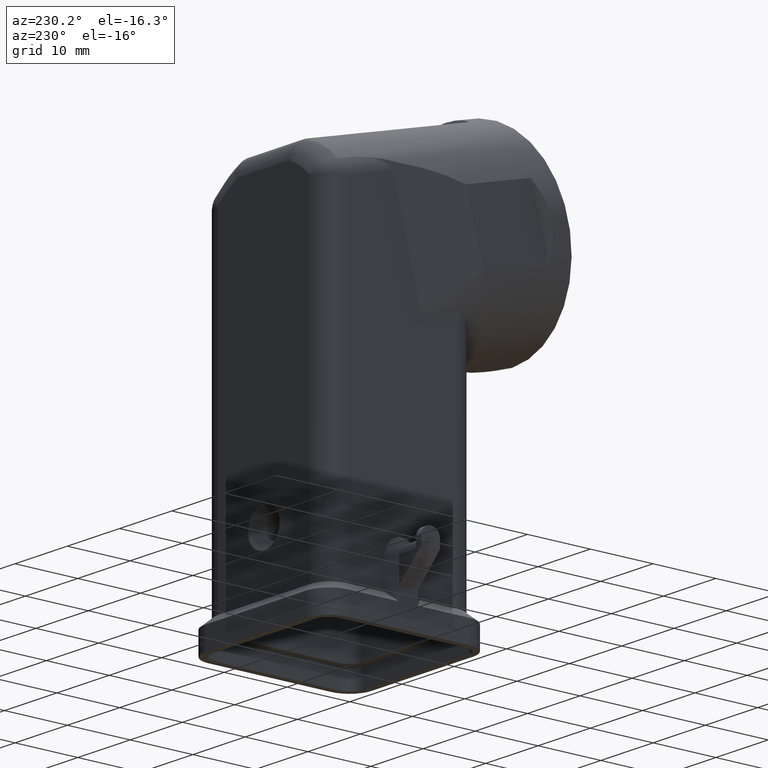
[diagram: clean part render]
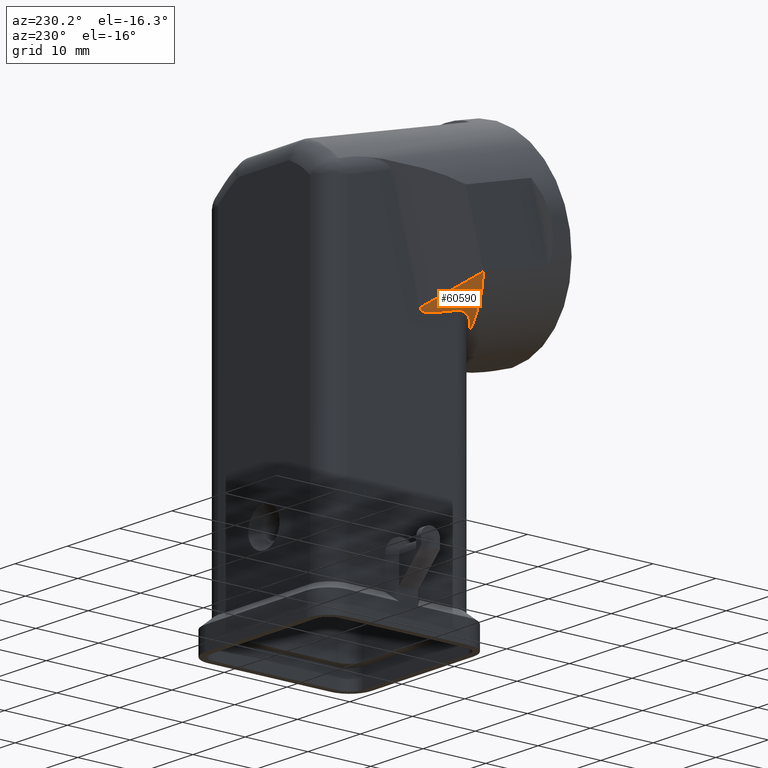
[diagram: same view with one face highlighted and labeled with its STEP entity id]
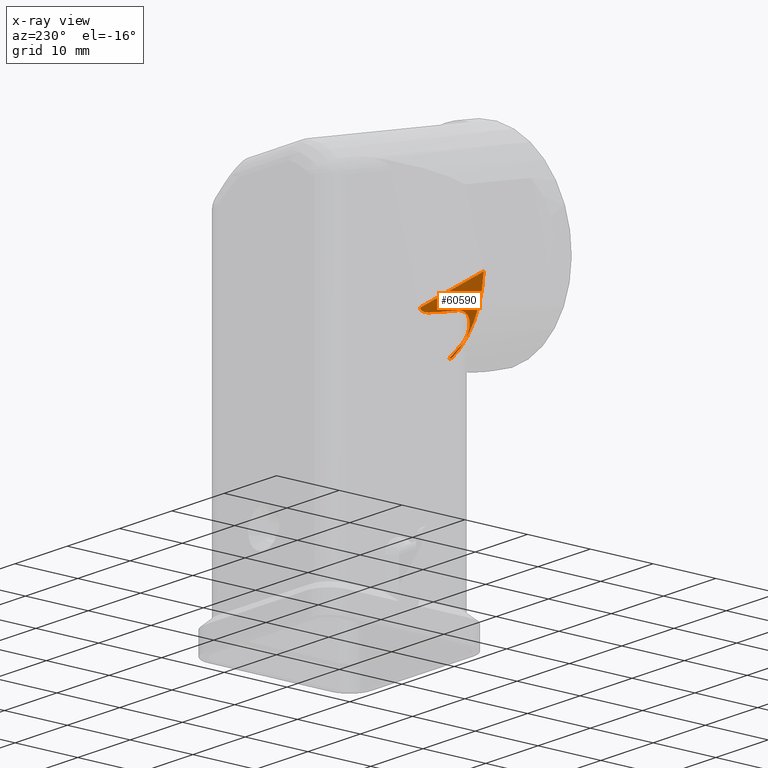
[diagram: x-ray of the same camera — body ghosted, the highlighted face saturated]
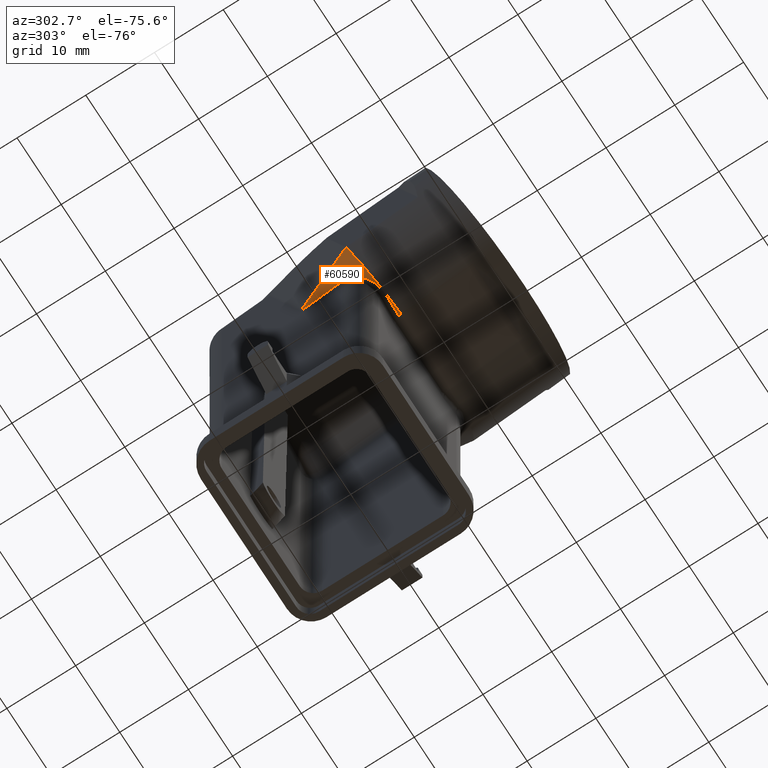
[diagram: same view with one face highlighted and labeled with its STEP entity id]
A machine part, auxiliary view. The second image highlights one B-rep face of the part: STEP entity #60590.
The next image is the same camera in x-ray: the body ghosted, the highlighted face saturated — about 0% of this face is hidden behind the body in this view.
A second angle (auxiliary view) of the same face is appended — the face is thin or edge-on in the first view.
In plain terms, the highlighted face is a freeform B-spline surface patch.
Its self-contained STEP definition (entity closure, byte-faithful):
#14660=CARTESIAN_POINT('',(7.105427357601E-15,20.3426655933017,
49.7853524136672));
#14670=DIRECTION('',(0.,-0.965925826289068,0.258819045102521));
#14680=DIRECTION('',(0.,-0.258819045102521,-0.965925826289068));
#14690=AXIS2_PLACEMENT_3D('',#14660,#14670,#14680);
#14700=CYLINDRICAL_SURFACE('',#14690,15.5);
#32070=CARTESIAN_POINT('',(-5.67339672627896,18.058251589328,
35.4642483275746));
#32080=VERTEX_POINT('',#32070);
#32110=CARTESIAN_POINT('',(-5.45998660335328,28.7704246634257,
49.5380371892867));
#32120=CARTESIAN_POINT('',(-7.10951499695104,30.0641740266937,
44.9499502436091));
#32130=CARTESIAN_POINT('',(-8.75904339054881,31.3579233899617,
40.3618632979314));
#32140=CARTESIAN_POINT('',(-10.4085717841465,32.6516727532296,
35.7737763522537));
#32150=CARTESIAN_POINT('',(-10.7528965206174,32.933348127911,
34.7826513364426));
#32160=CARTESIAN_POINT('',(-11.486214490612,32.9770223846094,
34.5085824493379));
#32170=CARTESIAN_POINT('',(-11.2327880037895,33.0575531833384,
35.2461909138547));
#32180=CARTESIAN_POINT('',(-10.6897379579591,32.798771668519,
35.5344035449767));
#32190=CARTESIAN_POINT('',(2.2915942522304,29.6442002418465,
45.5048808697784));
#32200=CARTESIAN_POINT('',(-1.68607623418347,30.109282805391,
42.2171589312712));
#32210=CARTESIAN_POINT('',(-5.66374672059735,30.5743653689355,
38.9294369927639));
#32220=CARTESIAN_POINT('',(-9.64141720701122,31.0394479324799,
35.6417150542567));
#32230=CARTESIAN_POINT('',(-10.4693150455754,31.1261425573949,
34.9927153109143));
#32240=CARTESIAN_POINT('',(-11.4681023843589,31.1858138997559,
35.0072863485111));
#32250=CARTESIAN_POINT('',(-11.4976210057393,31.3922877240778,
35.9859825951636));
#32260=CARTESIAN_POINT('',(-11.1264919719727,31.3745669076685,
36.5169896996335));
#32270=CARTESIAN_POINT('',(6.35974367383673,30.4646695067257,
39.4189970521722));
#32280=CARTESIAN_POINT('',(1.28225182279567,30.11560232369,
38.116260589828));
#32290=CARTESIAN_POINT('',(-3.79524002824539,29.7665351406542,
36.8135241274838));
#32300=CARTESIAN_POINT('',(-8.87273187928645,29.4174679576185,
35.5107876651396));
#32310=CARTESIAN_POINT('',(-10.188168466734,29.3344540723185,
35.2009756274664));
#32320=CARTESIAN_POINT('',(-11.4501933117057,29.4146845543278,
35.5003998626407));
#32330=CARTESIAN_POINT('',(-11.7601800902192,29.741320619599,
36.7194222538174));
#32340=CARTESIAN_POINT('',(-11.5632459859864,29.950362146818,
37.4995758542902));
#32350=CARTESIAN_POINT('',(8.29380750465553,23.589273827961,
32.0737426062616));
#32360=CARTESIAN_POINT('',(3.33158209046113,23.8651972289062,
33.1035027575859));
#32370=CARTESIAN_POINT('',(-1.63064332373327,24.1411206298513,
34.1332629089102));
#32380=CARTESIAN_POINT('',(-6.59286873792767,24.4170440307964,
35.1630230602346));
#32390=CARTESIAN_POINT('',(-9.44139707252448,24.5754357925898,
35.754149162748));
#32400=CARTESIAN_POINT('',(-11.4040177028501,24.8481177939743,
36.7718122462244));
#32410=CARTESIAN_POINT('',(-12.4575800528559,25.3560813914137,
38.6675582002637));
#32420=CARTESIAN_POINT('',(-12.8333333333334,25.8087529371747,
40.3569514081847));
#32430=CARTESIAN_POINT('',(8.99932011462885,19.9776178270593,
30.6111397782809));
#32440=CARTESIAN_POINT('',(4.30054726635661,20.363795758024,
32.052375437403));
#32450=CARTESIAN_POINT('',(-0.398225581915643,20.7499736889887,
33.4936110965251));
#32460=CARTESIAN_POINT('',(-5.09699843018789,21.1361516199534,
34.9348467556472));
#32470=CARTESIAN_POINT('',(-8.95142329515044,21.4529351435403,
36.1170989606741));
#32480=CARTESIAN_POINT('',(-11.3737208306494,21.8518889847954,
37.6060149661131));
#32490=CARTESIAN_POINT('',(-12.9151601057117,22.4788257198875,
39.9457747146079));
#32500=CARTESIAN_POINT('',(-13.6666666666667,23.091348488382,
42.2317408074223));
#32510=CARTESIAN_POINT('',(11.2887732426345,11.1962268547728,
29.0894722734841));
#32520=CARTESIAN_POINT('',(7.12362712740745,11.6653123581175,
30.8401232050607));
#32530=CARTESIAN_POINT('',(2.95848101218039,12.1343978614622,
32.5907741366373));
#32540=CARTESIAN_POINT('',(-1.20666510304666,12.603483364807,
34.3414250682138));
#32550=CARTESIAN_POINT('',(-7.67714082180977,13.3321988229081,
37.0610281821081));
#32560=CARTESIAN_POINT('',(-11.2949272808204,14.0595498148966,
39.7755390391448));
#32570=CARTESIAN_POINT('',(-14.105195712575,14.9959018516026,
43.270052413902));
#32580=CARTESIAN_POINT('',(-15.8339297124738,16.024152197526,
47.1075349477886));
#32590=CARTESIAN_POINT('',(12.8430265351663,7.49913021566494,
28.3898456130045));
#32600=CARTESIAN_POINT('',(8.94063476208463,7.56033781163254,
30.2391304034766));
#32610=CARTESIAN_POINT('',(5.03824298900297,7.62154540760014,
32.0884151939487));
#32620=CARTESIAN_POINT('',(1.13585121592131,7.68275300356775,
33.9376999844208));
#32630=CARTESIAN_POINT('',(-6.81020284293245,7.80738397212552,
37.7032155373873));
#32640=CARTESIAN_POINT('',(-11.2395405678973,8.58204494882888,
41.3005725891458));
#32650=CARTESIAN_POINT('',(-14.9148176648424,9.905012641256,
45.5316723059953));
#32660=CARTESIAN_POINT('',(-17.1678594249475,11.6743603554627,
50.1085396889172));
#32670=CARTESIAN_POINT('',(14.3886957448822,3.31723378344411,
27.9623015080457));
#32680=CARTESIAN_POINT('',(10.7519196748846,3.13216340307225,
29.8195259722397));
#32690=CARTESIAN_POINT('',(7.11514360488691,2.94709302270039,
31.6767504364338));
#32700=CARTESIAN_POINT('',(3.47836753488927,2.76202264232853,
33.5339749006278));
#32710=CARTESIAN_POINT('',(-5.94326486405514,2.28256912134294,
38.3454028926665));
#32720=CARTESIAN_POINT('',(-11.1841538549741,3.10454008276115,
42.8256061391467));
#32730=CARTESIAN_POINT('',(-15.7244396171098,4.81412343090945,
47.7932921980885));
#32740=CARTESIAN_POINT('',(-18.5017891374212,7.32456851339944,
53.1095444300458));
#32750=(BOUNDED_SURFACE() B_SPLINE_SURFACE(4,3,((#32110,#32190,#32270,
#32350,#32430,#32510,#32590,#32670),(#32120,#32200,#32280,#32360,#32440,
#32520,#32600,#32680),(#32130,#32210,#32290,#32370,#32450,#32530,#32610,
#32690),(#32140,#32220,#32300,#32380,#32460,#32540,#32620,#32700),(
#32150,#32230,#32310,#32390,#32470,#32550,#32630,#32710),(#32160,#32240,
#32320,#32400,#32480,#32560,#32640,#32720),(#32170,#32250,#32330,#32410,
#32490,#32570,#32650,#32730),(#32180,#32260,#32340,#32420,#32500,#32580,
#32660,#32740)),.UNSPECIFIED.,.F.,.F.,.F.) B_SPLINE_SURFACE_WITH_KNOTS((
5,3,5),(4,2,2,4),(59.0059229818574,61.8509667991878,66.3764501987817),(
-4.12445167449987,1.,10.7775321082295,26.4285808208288),.UNSPECIFIED.) 
GEOMETRIC_REPRESENTATION_ITEM() RATIONAL_B_SPLINE_SURFACE(((1.,1.,1.,1.,
1.,0.999999999999999,0.999999999999999,0.999999999999999),(1.,1.,1.,1.,
1.,0.999999999999999,0.999999999999999,0.999999999999999),(1.,1.,1.,1.,
1.,0.999999999999999,0.999999999999999,0.999999999999999),(1.,1.,1.,1.,
1.,0.999999999999999,0.999999999999999,0.999999999999999),(1.,1.,1.,1.,
1.,0.999999999999999,0.999999999999999,0.999999999999999),(
0.942809041582063,0.942809041582063,0.942809041582063,0.942809041582063,
0.99476159843922,0.99476159843922,0.99476159843922,0.99476159843922),(1.
,1.,1.,1.,1.,0.999999999999999,0.999999999999999,0.999999999999999),(1.,
1.,1.,1.,1.,0.999999999999999,0.999999999999999,0.999999999999999))) 
REPRESENTATION_ITEM('') SURFACE());
#32760=CARTESIAN_POINT('',(-9.29394125172286,18.5810226822534,
37.415256607107));
#32770=CARTESIAN_POINT('',(-9.1557614340163,18.5542272946411,
37.3152548591297));
#32780=CARTESIAN_POINT('',(-9.01572032288238,18.5280040336249,
37.2173883166403));
#32790=CARTESIAN_POINT('',(-8.87387288084377,18.5023687108727,
37.1217159896708));
#32800=CARTESIAN_POINT('',(-8.73202953816159,18.476734128975,
37.0260464276083));
#32810=CARTESIAN_POINT('',(-8.5883970722391,18.4516907644516,
36.9325833188173));
#32820=CARTESIAN_POINT('',(-8.44308681583731,18.4272622927661,
36.8414150213379));
#32830=CARTESIAN_POINT('',(-8.29777664754411,18.4028338358927,
36.7502467791383));
#32840=CARTESIAN_POINT('',(-8.15078908213352,18.3790203457624,
36.6613736240694));
#32850=CARTESIAN_POINT('',(-8.00224317872664,18.3558438206716,
36.5748776548885));
#32860=CARTESIAN_POINT('',(-7.85369732522482,18.3326673033671,
36.4883817147665));
#32870=CARTESIAN_POINT('',(-7.70359354916461,18.3101278201385,
36.4042632181816));
#32880=CARTESIAN_POINT('',(-7.55205742271274,18.2882453931046,
36.3225968886985));
#32890=CARTESIAN_POINT('',(-7.40052130707226,18.2663629676319,
36.240930565042));
#32900=CARTESIAN_POINT('',(-7.24755327359197,18.245137661695,
36.1617166448788));
#32910=CARTESIAN_POINT('',(-7.09328407678596,18.2245872780203,
36.0850215688901));
#32920=CARTESIAN_POINT('',(-6.93901485035626,18.2040368903994,
36.0083264781739));
#32930=CARTESIAN_POINT('',(-6.78344490522023,18.1841614819464,
35.9341504440064));
#32940=CARTESIAN_POINT('',(-6.62670873147855,18.164976447869,
35.8625509220847));
#32950=CARTESIAN_POINT('',(-6.46997248584714,18.145791404992,
35.7909513673227));
#32960=CARTESIAN_POINT('',(-6.31207046302168,18.1272967864971,
35.7219285106062));
#32970=CARTESIAN_POINT('',(-6.15313932516979,18.1095054467715,
35.6555303268428));
#32980=CARTESIAN_POINT('',(-5.99420807070694,18.0917140939921,
35.5891320943616));
#32990=CARTESIAN_POINT('',(-5.83424815393514,18.0746260620971,
35.5253586918956));
#33000=CARTESIAN_POINT('',(-5.67339672627873,18.0582515893281,
35.4642483275745));
#33010=B_SPLINE_CURVE_WITH_KNOTS('',3,(#32760,#32770,#32780,#32790,
#32800,#32810,#32820,#32830,#32840,#32850,#32860,#32870,#32880,#32890,
#32900,#32910,#32920,#32930,#32940,#32950,#32960,#32970,#32980,#32990,
#33000),.UNSPECIFIED.,.F.,.F.,(4,3,3,3,3,3,3,3,4),(0.,0.518493052032453,
1.03792686938708,1.55803383849138,2.0785218814299,2.59909161032297,
3.11944208955318,3.63927655293399,4.15830824190672),.UNSPECIFIED.);
#33020=SURFACE_CURVE('',#33010,(#32750,#14700),.CURVE_3D.);
#33030=CARTESIAN_POINT('',(-9.29394125172286,18.5810226822534,
37.415256607107));
#33040=VERTEX_POINT('',#33030);
#33050=EDGE_CURVE('',#33040,#32080,#33020,.T.);
#33070=CARTESIAN_POINT('',(-12.4045417492758,19.3861053327255,
40.419865962961));
#33080=CARTESIAN_POINT('',(-12.2943513776357,19.3480407844195,
40.277807134716));
#33090=CARTESIAN_POINT('',(-12.1815137284846,19.3104723549545,
40.1375998472473));
#33100=CARTESIAN_POINT('',(-12.0660627564347,19.2734148771726,
39.9992994573521));
#33110=CARTESIAN_POINT('',(-11.9506172980159,19.2363591691572,
39.8610056723153));
#33120=CARTESIAN_POINT('',(-11.8325817549931,19.1998222733965,
39.7246481209812));
#33130=CARTESIAN_POINT('',(-11.712065116879,19.1638394933531,
39.5903585576588));
#33140=CARTESIAN_POINT('',(-11.591548483686,19.1278567147791,
39.45606899982));
#33150=CARTESIAN_POINT('',(-11.4685511870742,19.0924281815671,
39.3238479138348));
#33160=CARTESIAN_POINT('',(-11.3431917853988,19.0575871227084,
39.1938193119833));
#33170=CARTESIAN_POINT('',(-11.2178323462329,19.0227460534299,
39.063790671245));
#33180=CARTESIAN_POINT('',(-11.0901112611349,18.9884925807608,
38.935954970905));
#33190=CARTESIAN_POINT('',(-10.9601551083915,18.9548574534026,
38.8104269666849));
#33200=CARTESIAN_POINT('',(-10.8301989556481,18.9212223260445,
38.6848989624649));
#33210=CARTESIAN_POINT('',(-10.6978537000802,18.8881656767592,
38.5615298678073));
#33220=CARTESIAN_POINT('',(-10.5632381455529,18.8557202664196,
38.4404419479479));
#33230=CARTESIAN_POINT('',(-10.4286226312841,18.8232748657832,
38.3193540643015));
#33240=CARTESIAN_POINT('',(-10.2917372904156,18.7914408229235,
38.2005477989404));
#33250=CARTESIAN_POINT('',(-10.1527105099075,18.7602488230009,
38.0841376704421));
#33260=CARTESIAN_POINT('',(-10.0136837237224,18.7290568218047,
37.9677275371903));
#33270=CARTESIAN_POINT('',(-9.87251599880745,18.6985069752708,
37.8537139577647));
#33280=CARTESIAN_POINT('',(-9.72934373726101,18.6686274919591,
37.7422022079508));
#33290=CARTESIAN_POINT('',(-9.58616463786194,18.6387465816146,
37.6306851323783));
#33300=CARTESIAN_POINT('',(-9.44101137282186,18.6095420490208,
37.5216923328826));
#33310=CARTESIAN_POINT('',(-9.29394125172286,18.5810226822534,
37.415256607107));
#33320=B_SPLINE_CURVE_WITH_KNOTS('',3,(#33070,#33080,#33090,#33100,
#33110,#33120,#33130,#33140,#33150,#33160,#33170,#33180,#33190,#33200,
#33210,#33220,#33230,#33240,#33250,#33260,#33270,#33280,#33290,#33300,
#33310),.UNSPECIFIED.,.F.,.F.,(4,3,3,3,3,3,3,3,4),(0.,0.551521027850455,
1.10341407076455,1.65534944923285,2.2069763948529,2.75860334047305,
3.31053871894143,3.86243176185563,4.41395278970617),.UNSPECIFIED.);
#33330=SURFACE_CURVE('',#33320,(#14700,#32750),.CURVE_3D.);
#33340=CARTESIAN_POINT('',(-12.4045417492758,19.3861053327255,
40.419865962961));
#33350=VERTEX_POINT('',#33340);
#33360=EDGE_CURVE('',#33350,#33040,#33330,.T.);
#33380=CARTESIAN_POINT('',(-4.6243853073401E-14,20.3426655933017,
49.7853524136672));
#33390=DIRECTION('',(-1.16313691722883E-16,-0.965925826289068,
0.258819045102521));
#33400=DIRECTION('',(-3.11661597658293E-17,-0.258819045102521,
-0.965925826289068));
#33410=AXIS2_PLACEMENT_3D('',#33380,#33390,#33400);
#33420=CYLINDRICAL_SURFACE('',#33410,15.5);
#33430=CARTESIAN_POINT('',(-12.4045417492759,19.3861053327255,
40.4198659629611));
#33440=CARTESIAN_POINT('',(-12.513319868558,19.4236820276255,
40.5601040975086));
#33450=CARTESIAN_POINT('',(-12.6196599668083,19.4617914006598,
40.7023302138924));
#33460=CARTESIAN_POINT('',(-12.7234856359901,19.5004149149256,
40.8464751315057));
#33470=CARTESIAN_POINT('',(-12.8273084354538,19.5390373616461,
40.9906160649859));
#33480=CARTESIAN_POINT('',(-12.9286040704586,19.5781694706974,
41.1366590841758));
#33490=CARTESIAN_POINT('',(-13.0272669794746,19.617777639383,
41.2844787821066));
#33500=CARTESIAN_POINT('',(-13.1259298224112,19.6573857815412,
41.4322983810355));
#33510=CARTESIAN_POINT('',(-13.2219595761005,19.6974698522051,
41.5818941693287));
#33520=CARTESIAN_POINT('',(-13.3152587296814,19.7379938493396,
41.7331317855608));
#33530=CARTESIAN_POINT('',(-13.4085578513516,19.7785178326138,
41.8843693500658));
#33540=CARTESIAN_POINT('',(-13.4991260355261,19.8194816037635,
42.0372482252665));
#33550=CARTESIAN_POINT('',(-13.5868752656726,19.8608471683551,
42.1916266140061));
#33560=CARTESIAN_POINT('',(-13.674624493993,19.9022127320857,
42.3460049995328));
#33570=CARTESIAN_POINT('',(-13.7595544612085,19.9439799450143,
42.5018823602734));
#33580=CARTESIAN_POINT('',(-13.841587799564,19.9861092680023,
42.659111134153));
#33590=CARTESIAN_POINT('',(-13.9236211625299,20.0282386036291,
42.8163399552018));
#33600=CARTESIAN_POINT('',(-14.0027576238226,20.0707299012794,
42.9749196369121));
#33610=CARTESIAN_POINT('',(-14.0789313327678,20.1135425652291,
43.1346986739797));
#33620=CARTESIAN_POINT('',(-14.155105089436,20.156355256001,
43.2944778111493));
#33630=CARTESIAN_POINT('',(-14.2283158587405,20.1994891632345,
43.4554557442076));
#33640=CARTESIAN_POINT('',(-14.2985098873174,20.2429031634953,
43.6174789989494));
#33650=CARTESIAN_POINT('',(-14.3687039835979,20.2863172056299,
43.7795024099662));
#33660=CARTESIAN_POINT('',(-14.4358811451368,20.3300111910808,
43.942570583904));
#33670=CARTESIAN_POINT('',(-14.5,20.3739440395895,44.1065302066599));
#33680=B_SPLINE_CURVE_WITH_KNOTS('',3,(#33430,#33440,#33450,#33460,
#33470,#33480,#33490,#33500,#33510,#33520,#33530,#33540,#33550,#33560,
#33570,#33580,#33590,#33600,#33610,#33620,#33630,#33640,#33650,#33660,
#33670),.UNSPECIFIED.,.F.,.F.,(4,3,3,3,3,3,3,3,4),(0.,0.544809896765574,
1.09064421194659,1.63718940813813,2.18410532583475,2.73104397227239,
3.2776568792016,3.82360244538535,4.36855349789572),.UNSPECIFIED.);
#33690=SURFACE_CURVE('',#33680,(#33420,#32750),.CURVE_3D.);
#33700=CARTESIAN_POINT('',(-14.4999999999999,20.3739440395897,
44.1065302066597));
#33710=VERTEX_POINT('',#33700);
#33720=EDGE_CURVE('',#33350,#33710,#33690,.T.);
#45210=CARTESIAN_POINT('',(-12.034074173711,28.4150454124902,
38.5588202885402));
#45220=VERTEX_POINT('',#45210);
#48250=CARTESIAN_POINT('',(-5.53479981809385,18.4033538625844,
35.3660110164831));
#48260=VERTEX_POINT('',#48250);
#48310=CARTESIAN_POINT('',(-5.96315159356535,17.1388652238213,
35.728694647815));
#48320=CARTESIAN_POINT('',(-5.95350688048335,17.1758070017941,
35.7180990944344));
#48330=CARTESIAN_POINT('',(-5.94367050800504,17.2127166896256,
35.7075085555293));
#48340=CARTESIAN_POINT('',(-5.91629966818547,17.3132593728786,
35.6786487050726));
#48350=CARTESIAN_POINT('',(-5.89836744814509,17.3768142595227,
35.660393794135));
#48360=CARTESIAN_POINT('',(-5.86114590595657,17.503787952559,
35.6239010141771));
#48370=CARTESIAN_POINT('',(-5.84185870364509,17.5671921382029,
35.605667306008));
#48380=CARTESIAN_POINT('',(-5.80178340334391,17.6938201122394,
35.569232464597));
#48390=CARTESIAN_POINT('',(-5.78099802977655,17.7570270743336,
35.5510361324642));
#48400=CARTESIAN_POINT('',(-5.73776047552073,17.8832134246161,
35.5146933652968));
#48410=CARTESIAN_POINT('',(-5.71531149163035,17.9461735282149,
35.4965524445651));
#48420=CARTESIAN_POINT('',(-5.66855695818637,18.071807289236,
35.4603423882416));
#48430=CARTESIAN_POINT('',(-5.64424642365583,18.1344786137797,
35.4422735239315));
#48440=CARTESIAN_POINT('',(-5.60627912942283,18.2280797606468,
35.4152836188749));
#48450=CARTESIAN_POINT('',(-5.59329195553772,18.2594029313093,
35.4062509790781));
#48460=CARTESIAN_POINT('',(-5.57364193394863,18.305736328638,
35.392889691492));
#48470=CARTESIAN_POINT('',(-5.56736580735175,18.3211637799931,
35.3885707056257));
#48480=CARTESIAN_POINT('',(-5.55522617990159,18.3519735987787,
35.3801097259214));
#48490=CARTESIAN_POINT('',(-5.54919393880511,18.367211023372,
35.3759270855793));
#48500=CARTESIAN_POINT('',(-5.51880096529361,18.4436212723252,
35.3549611399781));
#48510=CARTESIAN_POINT('',(-5.49408492510583,18.5046010749534,
35.3382561477868));
#48520=CARTESIAN_POINT('',(-5.44379694898897,18.6262791973679,
35.3049635614263));
#48530=CARTESIAN_POINT('',(-5.41823056209889,18.6869639551899,
35.2883797733632));
#48540=CARTESIAN_POINT('',(-5.36684093324417,18.806536122849,
35.2557352829886));
#48550=CARTESIAN_POINT('',(-5.341044790875,18.8654187066507,
35.2396751627827));
#48560=CARTESIAN_POINT('',(-5.28853983943638,18.9829003016447,
35.2076587926783));
#48570=CARTESIAN_POINT('',(-5.26184085705584,19.0414765315705,
35.191708785455));
#48580=CARTESIAN_POINT('',(-5.18022873449207,19.2168878673119,
35.1439819715604));
#48590=CARTESIAN_POINT('',(-5.12394244277471,19.3330967721178,
35.1124119102735));
#48600=CARTESIAN_POINT('',(-5.00701002114377,19.5640980799028,
35.0497552637067));
#48610=CARTESIAN_POINT('',(-4.94639518379895,19.6788092328325,
35.0186910977752));
#48620=CARTESIAN_POINT('',(-4.82029170406383,19.9064498529575,
34.9571644138095));
#48630=CARTESIAN_POINT('',(-4.75481938890613,20.0193241000424,
34.9267171954705));
#48640=CARTESIAN_POINT('',(-4.68492892776298,20.1338984861854,
34.8958901678297));
#48650=CARTESIAN_POINT('',(-4.68312320476533,20.1368547906676,
34.895094808317));
#48660=CARTESIAN_POINT('',(-4.6813156573676,20.1398101810756,
34.8942997496951));
#48670=B_SPLINE_CURVE_WITH_KNOTS('',3,(#48310,#48320,#48330,#48340,
#48350,#48360,#48370,#48380,#48390,#48400,#48410,#48420,#48430,#48440,
#48450,#48460,#48470,#48480,#48490,#48500,#48510,#48520,#48530,#48540,
#48550,#48560,#48570,#48580,#48590,#48600,#48610,#48620,#48630,#48640,
#48650,#48660),.UNSPECIFIED.,.F.,.F.,(4,2,2,2,2,2,2,2,2,2,2,2,2,2,2,2,2,
4),(13.8796530119001,13.9965694569296,14.1984224630151,14.4006024880517,
14.6031343462919,14.8060761866003,15.0095047803932,15.1114144953913,
15.1619939232196,15.2122225911669,15.413157408121,15.6141242682402,
15.8101430034087,16.0062680645967,16.3989455991725,16.7922373676457,
17.1863627294074,17.1968047879942),.UNSPECIFIED.);
#48680=EDGE_CURVE('',#32080,#48260,#48670,.T.);
#51370=CARTESIAN_POINT('',(-10.6897379579591,32.798771668519,
35.5344035449767));
#51380=CARTESIAN_POINT('',(-11.1264919719727,31.3745669076685,
36.5169896996335));
#51390=CARTESIAN_POINT('',(-11.5632459859864,29.950362146818,
37.4995758542902));
#51400=CARTESIAN_POINT('',(-12.8333333333334,25.8087529371747,
40.3569514081847));
#51410=CARTESIAN_POINT('',(-13.6666666666667,23.091348488382,
42.2317408074223));
#51420=CARTESIAN_POINT('',(-15.8339297124738,16.024152197526,
47.1075349477886));
#51430=CARTESIAN_POINT('',(-17.1678594249475,11.6743603554627,
50.1085396889172));
#51440=CARTESIAN_POINT('',(-18.5017891374212,7.32456851339944,
53.1095444300458));
#51450=(BOUNDED_CURVE() B_SPLINE_CURVE(3,(#51370,#51380,#51390,#51400,
#51410,#51420,#51430,#51440),.UNSPECIFIED.,.F.,.F.) 
B_SPLINE_CURVE_WITH_KNOTS((4,2,2,4),(-4.12445167449987,1.,
10.7775321082295,26.4285808208288),.UNSPECIFIED.) CURVE() 
GEOMETRIC_REPRESENTATION_ITEM() RATIONAL_B_SPLINE_CURVE((1.,1.,1.,1.,1.,
1.,1.,1.)) REPRESENTATION_ITEM(''));
#51460=EDGE_CURVE('',#45220,#33710,#51450,.T.);
#58300=ORIENTED_EDGE('',*,*,#51460,.F.);
#58310=ORIENTED_EDGE('',*,*,#33720,.T.);
#58320=ORIENTED_EDGE('',*,*,#33360,.F.);
#58330=ORIENTED_EDGE('',*,*,#33050,.F.);
#58340=ORIENTED_EDGE('',*,*,#48680,.F.);
#58350=CARTESIAN_POINT('',(-8.26832139758349,18.4812221818401,
36.7136566773033));
#58360=CARTESIAN_POINT('',(-8.23394058103185,18.4806438808789,
36.6916114594538));
#58370=CARTESIAN_POINT('',(-8.19945994887599,18.4800459723131,
36.669719124541));
#58380=CARTESIAN_POINT('',(-8.12911740737704,18.478789097758,
36.6254982099418));
#58390=CARTESIAN_POINT('',(-8.09324694306307,18.4781288703857,
36.6031794574018));
#58400=CARTESIAN_POINT('',(-8.05464637311731,18.4773976912298,
36.5794100196449));
#58410=CARTESIAN_POINT('',(-8.05201765737885,18.4773477949148,
36.57779254068));
#58420=CARTESIAN_POINT('',(-8.03871111701923,18.4770947004852,
36.5696110988168));
#58430=CARTESIAN_POINT('',(-8.02802504965642,18.476889755318,
36.5630611190388));
#58440=CARTESIAN_POINT('',(-7.96420604178424,18.4756556931181,
36.5240644952012));
#58450=CARTESIAN_POINT('',(-7.85752549229492,18.4735094078361,
36.4598768576971));
#58460=CARTESIAN_POINT('',(-7.74998885223503,18.4711796580884,
36.3971688750672));
#58470=CARTESIAN_POINT('',(-7.63527204712053,18.4686066785212,
36.331327345418));
#58480=CARTESIAN_POINT('',(-7.57427346940742,18.4671865178604,
36.2969423862449));
#58490=CARTESIAN_POINT('',(-7.45175902867134,18.4642309046568,
36.2291264233861));
#58500=CARTESIAN_POINT('',(-7.39024316564838,18.4626954521139,
36.1956954197005));
#58510=CARTESIAN_POINT('',(-7.25034608279766,18.4590880390905,
36.1210674766009));
#58520=CARTESIAN_POINT('',(-7.17182215050062,18.4569819303473,
36.0801634353695));
#58530=CARTESIAN_POINT('',(-7.07389956098288,18.4542561825531,
36.0303685405366));
#58540=CARTESIAN_POINT('',(-7.03682290884801,18.4532151201929,
36.0116246313191));
#58550=CARTESIAN_POINT('',(-6.99966101868837,18.4521541853943,
35.9930517415239));
#58560=CARTESIAN_POINT('',(-6.96215313693039,18.4510748312357,
35.974410742659));
#58570=CARTESIAN_POINT('',(-6.92224570761472,18.4499167071097,
35.9546964104059));
#58580=CARTESIAN_POINT('',(-6.88224238263725,18.4487359510832,
35.9351791523157));
#58590=CARTESIAN_POINT('',(-6.85615097175181,18.4479592334342,
35.9225308641884));
#58600=CARTESIAN_POINT('',(-6.85061576552895,18.4477940791405,
35.9198522183686));
#58610=CARTESIAN_POINT('',(-6.81899117350465,18.4468483480876,
35.9045746933407));
#58620=CARTESIAN_POINT('',(-6.7928632490597,18.446058656149,
35.892055616678));
#58630=CARTESIAN_POINT('',(-6.63934748676157,18.4413701542158,
35.8191025769659));
#58640=CARTESIAN_POINT('',(-6.51107751431946,18.4372566500223,
35.7605786579291));
#58650=CARTESIAN_POINT('',(-6.31733776726698,18.4307607025558,
35.6757847554643));
#58660=CARTESIAN_POINT('',(-6.25253994073258,18.42854125214,
35.6480208455582));
#58670=CARTESIAN_POINT('',(-6.12252339936744,18.4239965708351,
35.5934959192979));
#58680=CARTESIAN_POINT('',(-6.0573046845367,18.421671339946,
35.5667349029436));
#58690=CARTESIAN_POINT('',(-5.96222596894844,18.4182169863124,
35.5285722260844));
#58700=CARTESIAN_POINT('',(-5.90289317099711,18.4160434813017,
35.5049964488058));
#58710=CARTESIAN_POINT('',(-5.84343256344761,18.413829520582,
35.4818467320466));
#58720=CARTESIAN_POINT('',(-5.80986101434829,18.41256944648,
35.4689098898244));
#58730=CARTESIAN_POINT('',(-5.80607072039994,18.4124270372778,
35.467451209258));
#58740=CARTESIAN_POINT('',(-5.77145957169374,18.4111253070408,
35.4541486991497));
#58750=CARTESIAN_POINT('',(-5.74058148357082,18.4099544417434,
35.4424073374825));
#58760=CARTESIAN_POINT('',(-5.69214567444211,18.4081032267461,
35.4241881216917));
#58770=CARTESIAN_POINT('',(-5.67464284137118,18.4074313070258,
35.4176447194407));
#58780=CARTESIAN_POINT('',(-5.64704924985162,18.406367415746,
35.4073924281402));
#58790=CARTESIAN_POINT('',(-5.63692451055649,18.4060122555198,
35.4036392351589));
#58800=CARTESIAN_POINT('',(-5.62167531646604,18.4055215939646,
35.3980009237316));
#58810=CARTESIAN_POINT('',(-5.61658189872114,18.4053650553122,
35.3961200785852));
#58820=CARTESIAN_POINT('',(-5.6063799425803,18.4050648301108,
35.3923578989203));
#58830=CARTESIAN_POINT('',(-5.60127116674975,18.4049212253227,
35.3904772017319));
#58840=CARTESIAN_POINT('',(-5.57570850800727,18.4042306440324,
35.3810647309476));
#58850=CARTESIAN_POINT('',(-5.55519551968269,18.4037669562888,
35.3735133342789));
#58860=CARTESIAN_POINT('',(-5.53479981431261,18.403353863874,
35.3660110266917));
#58870=(BOUNDED_CURVE() B_SPLINE_CURVE(3,(#58350,#58360,#58370,#58380,
#58390,#58400,#58410,#58420,#58430,#58440,#58450,#58460,#58470,#58480,
#58490,#58500,#58510,#58520,#58530,#58540,#58550,#58560,#58570,#58580,
#58590,#58600,#58610,#58620,#58630,#58640,#58650,#58660,#58670,#58680,
#58690,#58700,#58710,#58720,#58730,#58740,#58750,#58760,#58770,#58780,
#58790,#58800,#58810,#58820,#58830,#58840,#58850,#58860),.UNSPECIFIED.,
.F.,.F.) B_SPLINE_CURVE_WITH_KNOTS((4,2,2,2,2,1,2,2,2,2,1,2,1,2,2,2,2,2,
2,1,2,2,2,2,2,2,2,4),(0.,0.126786024948464,0.257948543547989,
0.267531426077825,0.306447210016421,0.499752771586692,0.693058333156963,
0.910558333393264,1.12805833362956,1.40314490341995,1.46940616801894,
1.53223733685636,1.5995528443494,1.67054325780412,1.68965099390647,
1.77967667155758,2.2177907514018,2.43686172924258,2.65593270708337,
2.75522883916672,2.85452497125007,2.86715935070081,2.96986931276351,
3.02785240142859,3.06112596951818,3.07776275356297,3.09439953760777,
3.16094667378695),.UNSPECIFIED.) CURVE() GEOMETRIC_REPRESENTATION_ITEM()
 RATIONAL_B_SPLINE_CURVE((1.,1.,1.,1.,1.,1.,1.,1.,1.,1.,1.,1.,1.,1.,1.,
1.,1.,1.,1.,1.,1.,1.,1.,1.,1.,1.,1.,1.,1.,1.,1.,1.,1.,1.,1.,1.,1.,1.,1.,
1.,1.,1.,1.,1.,1.,1.,1.,1.,1.,1.,1.,1.)) REPRESENTATION_ITEM(''));
#58880=CARTESIAN_POINT('',(-8.26832139758349,18.4812221818401,
36.7136566773033));
#58890=VERTEX_POINT('',#58880);
#58900=EDGE_CURVE('',#58890,#48260,#58870,.T.);
#58910=ORIENTED_EDGE('',*,*,#58900,.T.);
#58920=CARTESIAN_POINT('',(-8.26832139758349,18.4812221818401,
36.7136566773033));
#58930=CARTESIAN_POINT('',(-8.31681431168112,18.4820379579113,
36.7447506454048));
#58940=CARTESIAN_POINT('',(-8.36520332919495,18.4837706334213,
36.7759828126482));
#58950=CARTESIAN_POINT('',(-8.49442220540831,18.4908262502948,
36.8599143014733));
#58960=CARTESIAN_POINT('',(-8.57499935752157,18.49778573129,
36.9128084376333));
#58970=CARTESIAN_POINT('',(-8.74580419443181,18.517909100162,
37.0260439753098));
#58980=CARTESIAN_POINT('',(-8.83584917935996,18.5317578628497,
37.0864105744516));
#58990=CARTESIAN_POINT('',(-9.01478315436895,18.5657066468839,
37.2076100999274));
#59000=CARTESIAN_POINT('',(-9.10360554847461,18.5858041739266,
37.2683999372505));
#59010=CARTESIAN_POINT('',(-9.27982299917405,18.6321726214669,
37.3901523643007));
#59020=CARTESIAN_POINT('',(-9.36715589594503,18.6584339088934,
37.451073289396));
#59030=CARTESIAN_POINT('',(-9.52795210895805,18.712946205324,
37.5642187374054));
#59040=CARTESIAN_POINT('',(-9.60160718290257,18.7403900134034,
37.6164395815482));
#59050=CARTESIAN_POINT('',(-9.74749284313009,18.7997738471336,
37.7205837485401));
#59060=CARTESIAN_POINT('',(-9.81968316061163,18.831697312659,
37.7724783818221));
#59070=CARTESIAN_POINT('',(-9.96246830803737,18.90003248373,
37.8757609070482));
#59080=CARTESIAN_POINT('',(-10.0330202970074,18.9364212122691,
37.9271176099542));
#59090=CARTESIAN_POINT('',(-10.1723549991729,19.013694480939,
38.0291026337938));
#59100=CARTESIAN_POINT('',(-10.2410935482451,19.0545499773548,
38.0796982898966));
#59110=CARTESIAN_POINT('',(-10.3765423741125,19.1407314521628,
38.1798638957248));
#59120=CARTESIAN_POINT('',(-10.4432089646955,19.1860164485428,
38.2294006158702));
#59130=CARTESIAN_POINT('',(-10.5743852689212,19.2811239261965,
38.3272307701167));
#59140=CARTESIAN_POINT('',(-10.6388472532335,19.3309014778844,
38.375488192737));
#59150=CARTESIAN_POINT('',(-10.7653803430652,19.4350266660625,
38.4704449051135));
#59160=CARTESIAN_POINT('',(-10.8274019089987,19.4893183235095,
38.5171067174237));
#59170=CARTESIAN_POINT('',(-10.9488213599429,19.6025305504542,
38.6085331418399));
#59180=CARTESIAN_POINT('',(-11.0081766537752,19.6613943444301,
38.65326578116));
#59190=CARTESIAN_POINT('',(-11.0661493600887,19.7226703680361,
38.696899024299));
#59200=CARTESIAN_POINT('',(-11.1150673879872,19.7743757725768,
38.7337172503384));
#59210=CARTESIAN_POINT('',(-11.1629867392799,19.8277843225518,
38.7697418042755));
#59220=CARTESIAN_POINT('',(-11.256542854219,19.9379610088351,
38.8398483989136));
#59230=CARTESIAN_POINT('',(-11.3021528561475,19.9946797260852,
38.8739112411459));
#59240=CARTESIAN_POINT('',(-11.3908820331538,20.1114940780782,
38.939774541475));
#59250=CARTESIAN_POINT('',(-11.4339685675685,20.1715243245157,
38.9715523553063));
#59260=CARTESIAN_POINT('',(-11.5174322600988,20.2949795001977,
39.0324908288586));
#59270=CARTESIAN_POINT('',(-11.5577979517646,20.3583673257261,
39.0616449998975));
#59280=CARTESIAN_POINT('',(-11.6209025524979,20.4639785326956,
39.1065008646966));
#59290=CARTESIAN_POINT('',(-11.6445624993697,20.5051884243043,
39.1231398419098));
#59300=CARTESIAN_POINT('',(-11.6906318489864,20.5888522089834,
39.1551067463457));
#59310=CARTESIAN_POINT('',(-11.7130255489039,20.6312651565617,
39.1704253735669));
#59320=CARTESIAN_POINT('',(-11.7565770145575,20.717473357889,
39.1996917186333));
#59330=CARTESIAN_POINT('',(-11.7776660418757,20.7611207850927,
39.2135953776561));
#59340=CARTESIAN_POINT('',(-11.818494674743,20.8496818363007,
39.2398796323268));
#59350=CARTESIAN_POINT('',(-11.8382342824223,20.8945954598258,
39.2522602262804));
#59360=CARTESIAN_POINT('',(-11.8951824008683,21.0308640900651,
39.2868401611255));
#59370=CARTESIAN_POINT('',(-11.9302734438842,21.1240702816765,
39.3065790298452));
#59380=CARTESIAN_POINT('',(-11.9780514766327,21.2667876112684,
39.3303483367477));
#59390=CARTESIAN_POINT('',(-11.9931947191525,21.3149115699627,
39.337313586133));
#59400=CARTESIAN_POINT('',(-12.0217785270848,21.4119745881112,
39.3491618846333));
#59410=CARTESIAN_POINT('',(-12.0352371072472,21.4609657712568,
39.3540541847811));
#59420=CARTESIAN_POINT('',(-12.0578805559958,21.5497773203006,
39.3608834964319));
#59430=CARTESIAN_POINT('',(-12.0673870115251,21.5894858969481,
39.3632188310697));
#59440=CARTESIAN_POINT('',(-12.0852597085821,21.6693128220643,
39.3664339200762));
#59450=CARTESIAN_POINT('',(-12.0936281765129,21.7094428100457,
39.3673136531589));
#59460=CARTESIAN_POINT('',(-12.109204816049,21.7900402649636,
39.3675696040007));
#59470=CARTESIAN_POINT('',(-12.1164132897778,21.8305150636423,
39.366944438627));
#59480=CARTESIAN_POINT('',(-12.1296541526027,21.9117138921522,
39.3641516151584));
#59490=CARTESIAN_POINT('',(-12.1356863195046,21.952447767292,
39.3619812731573));
#59500=CARTESIAN_POINT('',(-12.1465639258719,22.0340541120333,
39.3560715767659));
#59510=CARTESIAN_POINT('',(-12.1514088912175,22.0749383622936,
39.3523286820331));
#59520=CARTESIAN_POINT('',(-12.1599144426458,22.1567589173619,
39.3432596153251));
#59530=CARTESIAN_POINT('',(-12.1635733315663,22.1977082343716,
39.3379279152813));
#59540=CARTESIAN_POINT('',(-12.1697153489252,22.2795574202437,
39.3256811022481));
#59550=CARTESIAN_POINT('',(-12.1721958943111,22.3204706357721,
39.318759087829));
#59560=CARTESIAN_POINT('',(-12.1759988042766,22.4021476263145,
39.303346096245));
#59570=CARTESIAN_POINT('',(-12.1773178409055,22.442930018709,
39.2948457500696));
#59580=CARTESIAN_POINT('',(-12.1785489740897,22.5094062286072,
39.2796891403621));
#59590=CARTESIAN_POINT('',(-12.1787974388502,22.5352392704643,
39.273473588505));
#59600=CARTESIAN_POINT('',(-12.1788402571272,22.5826648559482,
39.2614709735709));
#59610=CARTESIAN_POINT('',(-12.178700151156,22.6042648582556,
39.2557758852973));
#59620=CARTESIAN_POINT('',(-12.1784035863207,22.6258202833252,
39.2498658711581));
#59630=B_SPLINE_CURVE_WITH_KNOTS('',3,(#58920,#58930,#58940,#58950,
#58960,#58970,#58980,#58990,#59000,#59010,#59020,#59030,#59040,#59050,
#59060,#59070,#59080,#59090,#59100,#59110,#59120,#59130,#59140,#59150,
#59160,#59170,#59180,#59190,#59200,#59210,#59220,#59230,#59240,#59250,
#59260,#59270,#59280,#59290,#59300,#59310,#59320,#59330,#59340,#59350,
#59360,#59370,#59380,#59390,#59400,#59410,#59420,#59430,#59440,#59450,
#59460,#59470,#59480,#59490,#59500,#59510,#59520,#59530,#59540,#59550,
#59560,#59570,#59580,#59590,#59600,#59610,#59620),.UNSPECIFIED.,.F.,.F.,
(4,2,2,2,2,2,2,2,2,2,2,2,2,3,2,2,2,2,2,2,2,2,2,2,2,2,2,2,2,2,2,2,2,2,4),
(0.,0.163619963790007,0.438098698181701,0.748492127575208,
1.05937485670094,1.37056910048626,1.63812017712422,1.90567452325226,
2.17310996243773,2.44033176830645,2.70695150730841,2.97313176051732,
3.23870481792603,3.50360411170968,3.72794399856373,3.95165182282499,
4.17460338114308,4.39681680894507,4.5350181248408,4.67292569301554,
4.81041329945679,4.94790090589805,5.2215391281104,5.35804940138285,
5.49447141610159,5.60346403309487,5.71250323806474,5.82163610424963,
5.93092878632654,6.04040473236735,6.15016128665852,6.26025583445591,
6.37074042633836,6.44129863512334,6.50073665581567),.UNSPECIFIED.);
#59640=CARTESIAN_POINT('',(-12.1784035863207,22.6258202833252,
39.2498658711581));
#59650=VERTEX_POINT('',#59640);
#59660=EDGE_CURVE('',#58890,#59650,#59630,.T.);
#59670=ORIENTED_EDGE('',*,*,#59660,.F.);
#59680=CARTESIAN_POINT('',(-12.034074173711,28.4150454124902,
38.5588202885402));
#59690=CARTESIAN_POINT('',(-12.0313895447519,28.4208522556069,
38.5436491845448));
#59700=CARTESIAN_POINT('',(-12.0297378002895,28.4224336850509,
38.5283074834207));
#59710=CARTESIAN_POINT('',(-12.0282030413652,28.420385587118,
38.5052426809144));
#59720=CARTESIAN_POINT('',(-12.0278484450229,28.4189661390027,
38.4975457143381));
#59730=CARTESIAN_POINT('',(-12.0273554667545,28.4149742112999,
38.482168048366));
#59740=CARTESIAN_POINT('',(-12.0272169991125,28.4124017115178,
38.4744873569604));
#59750=CARTESIAN_POINT('',(-12.0270647801726,28.4064256232555,
38.4591753225312));
#59760=CARTESIAN_POINT('',(-12.0270509889223,28.4030219141199,
38.4515438834327));
#59770=CARTESIAN_POINT('',(-12.0270652428556,28.395707207703,
38.4363624815201));
#59780=CARTESIAN_POINT('',(-12.0270932632926,28.3917962049408,
38.4288125213236));
#59790=CARTESIAN_POINT('',(-12.0271180343071,28.3837931000941,
38.4138253719196));
#59800=CARTESIAN_POINT('',(-12.0271147894568,28.3797009809381,
38.4063881654754));
#59810=CARTESIAN_POINT('',(-12.0270140583538,28.371663964372,
38.3916566435159));
#59820=CARTESIAN_POINT('',(-12.0269165997492,28.3677190726734,
38.3843623246956));
#59830=CARTESIAN_POINT('',(-12.0262862133524,28.3540749682573,
38.3578245264261));
#59840=CARTESIAN_POINT('',(-12.0259448537095,28.3428084742972,
38.3394142829591));
#59850=CARTESIAN_POINT('',(-12.0255118695182,28.3174468213644,
38.3046321514469));
#59860=CARTESIAN_POINT('',(-12.0254212834974,28.3034968895247,
38.2884314167726));
#59870=CARTESIAN_POINT('',(-12.0254849219291,28.2728887289642,
38.2582307295057));
#59880=CARTESIAN_POINT('',(-12.0256394950507,28.2563888896809,
38.2444018591376));
#59890=CARTESIAN_POINT('',(-12.0261979104566,28.219329757806,
38.2178164648462));
#59900=CARTESIAN_POINT('',(-12.0266227452409,28.1987237546791,
38.2054577054609));
#59910=CARTESIAN_POINT('',(-12.0276979051144,28.1551742684928,
38.1833317786178));
#59920=CARTESIAN_POINT('',(-12.0283487586347,28.1323136674722,
38.1736658380101));
#59930=CARTESIAN_POINT('',(-12.0298300960079,28.0847603812639,
38.1566880494342));
#59940=CARTESIAN_POINT('',(-12.0306626572715,28.0600740951995,
38.1494347836055));
#59950=CARTESIAN_POINT('',(-12.0324625877814,28.0093636815965,
38.1370107022588));
#59960=CARTESIAN_POINT('',(-12.0334330760316,27.9832923843192,
38.1318680092482));
#59970=CARTESIAN_POINT('',(-12.0353319998408,27.9338055646964,
38.1239457633392));
#59980=CARTESIAN_POINT('',(-12.0362538899009,27.91038291112,
38.1209428629869));
#59990=CARTESIAN_POINT('',(-12.0381512042109,27.8629802088319,
38.1160968238268));
#60000=CARTESIAN_POINT('',(-12.03912891143,27.8389513151723,
38.1142610211857));
#60010=CARTESIAN_POINT('',(-12.0411237335169,27.7904267993697,
38.1115843632665));
#60020=CARTESIAN_POINT('',(-12.0421424670688,27.7658969034049,
38.1107515057315));
#60030=CARTESIAN_POINT('',(-12.0442066442236,27.7164751498683,
38.1099443107395));
#60040=CARTESIAN_POINT('',(-12.0452534495655,27.6915532065075,
38.1099763480422));
#60050=CARTESIAN_POINT('',(-12.0473664060399,27.6413634051756,
38.1107830062394));
#60060=CARTESIAN_POINT('',(-12.0484337031822,27.616069629282,
38.1115647123941));
#60070=CARTESIAN_POINT('',(-12.0505776734353,27.5652456815559,
38.1137739567206));
#60080=CARTESIAN_POINT('',(-12.0516552772869,27.5396936104933,
38.1152061837164));
#60090=CARTESIAN_POINT('',(-12.0538139224459,27.4883925210273,
38.1186332963041));
#60100=CARTESIAN_POINT('',(-12.0548957254126,27.4626250176722,
38.120632275838));
#60110=CARTESIAN_POINT('',(-12.0570578357456,27.4109296850319,
38.1251224940828));
#60120=CARTESIAN_POINT('',(-12.0581384450944,27.3849940294228,
38.1276163823269));
#60130=CARTESIAN_POINT('',(-12.0606856711781,27.3235501972305,
38.1340207434959));
#60140=CARTESIAN_POINT('',(-12.0621476743926,27.2880395763641,
38.1381123210163));
#60150=CARTESIAN_POINT('',(-12.0650554650904,27.2168024417528,
38.1469725114817));
#60160=CARTESIAN_POINT('',(-12.0665016914671,27.1810628207807,
38.1517459613299));
#60170=CARTESIAN_POINT('',(-12.0693718828009,27.1094269959779,
38.1618685358883));
#60180=CARTESIAN_POINT('',(-12.0707966010622,27.0735097224494,
38.1672228024283));
#60190=CARTESIAN_POINT('',(-12.0736200155599,27.001549588204,
38.1784258945683));
#60200=CARTESIAN_POINT('',(-12.0750185312752,26.9655096458083,
38.1842755629812));
#60210=CARTESIAN_POINT('',(-12.079182070405,26.8569515954137,
38.2025142324158));
#60220=CARTESIAN_POINT('',(-12.081895451218,26.7844871114557,
38.2155127263984));
#60230=CARTESIAN_POINT('',(-12.0871991448805,26.639196991826,
38.2428181685132));
#60240=CARTESIAN_POINT('',(-12.0897898184666,26.5663475754315,
38.2571371954731));
#60250=CARTESIAN_POINT('',(-12.0948449742855,26.4203535978455,
38.2868075042461));
#60260=CARTESIAN_POINT('',(-12.0973108301895,26.3471538369186,
38.302175369469));
#60270=CARTESIAN_POINT('',(-12.1021138324718,26.2006100412407,
38.3337196415308));
#60280=CARTESIAN_POINT('',(-12.1044520244928,26.1272258299911,
38.3499071769894));
#60290=CARTESIAN_POINT('',(-12.1090038562517,25.9803404811525,
38.3829388695149));
#60300=CARTESIAN_POINT('',(-12.1112182007389,25.9068094181056,
38.3997914009524));
#60310=CARTESIAN_POINT('',(-12.1155276022759,25.7596573102023,
38.4340359337538));
#60320=CARTESIAN_POINT('',(-12.117622885895,25.6860232235032,
38.4514319844583));
#60330=CARTESIAN_POINT('',(-12.1226922402585,25.5028360570838,
38.4952473070068));
#60340=CARTESIAN_POINT('',(-12.1255958015284,25.3933079614124,
38.5219212567481));
#60350=CARTESIAN_POINT('',(-12.1311749821377,25.174108612816,
38.5760421772896));
#60360=CARTESIAN_POINT('',(-12.1338508091819,25.0644157429569,
38.6034965322452));
#60370=CARTESIAN_POINT('',(-12.138994224476,24.8449480905784,
38.6590134876638));
#60380=CARTESIAN_POINT('',(-12.1414622901026,24.7351432488987,
38.6870848841487));
#60390=CARTESIAN_POINT('',(-12.1462095981989,24.5154732564565,
38.7437198662459));
#60400=CARTESIAN_POINT('',(-12.1484891587581,24.4055857665088,
38.7722899669916));
#60410=CARTESIAN_POINT('',(-12.1528776658584,24.1857514940747,
38.8298389435176));
#60420=CARTESIAN_POINT('',(-12.1549868067315,24.0757877597248,
38.8588228046676));
#60430=CARTESIAN_POINT('',(-12.1590504851937,23.8558250006498,
38.917129473304));
#60440=CARTESIAN_POINT('',(-12.1610051712832,23.7458128658038,
38.9464560973988));
#60450=CARTESIAN_POINT('',(-12.16477465371,23.5257614328576,
39.0053968093229));
#60460=CARTESIAN_POINT('',(-12.1665895540563,23.4157118433581,
39.0350138933925));
#60470=CARTESIAN_POINT('',(-12.1700926462535,23.1955931503559,
39.0944947994809));
#60480=CARTESIAN_POINT('',(-12.1717808005888,23.0855234735175,
39.1243589304978));
#60490=CARTESIAN_POINT('',(-12.1748544157183,22.8780468336363,
39.1808502365437));
#60500=CARTESIAN_POINT('',(-12.1762522668483,22.7806538635033,
39.2074502856587));
#60510=CARTESIAN_POINT('',(-12.1778752752873,22.6641179232456,
39.2393677314105));
#60520=CARTESIAN_POINT('',(-12.1781400691111,22.644969254498,
39.2446155620706));
#60530=CARTESIAN_POINT('',(-12.1784035863207,22.6258202833252,
39.2498658711581));
#60540=B_SPLINE_CURVE_WITH_KNOTS('',3,(#59680,#59690,#59700,#59710,
#59720,#59730,#59740,#59750,#59760,#59770,#59780,#59790,#59800,#59810,
#59820,#59830,#59840,#59850,#59860,#59870,#59880,#59890,#59900,#59910,
#59920,#59930,#59940,#59950,#59960,#59970,#59980,#59990,#60000,#60010,
#60020,#60030,#60040,#60050,#60060,#60070,#60080,#60090,#60100,#60110,
#60120,#60130,#60140,#60150,#60160,#60170,#60180,#60190,#60200,#60210,
#60220,#60230,#60240,#60250,#60260,#60270,#60280,#60290,#60300,#60310,
#60320,#60330,#60340,#60350,#60360,#60370,#60380,#60390,#60400,#60410,
#60420,#60430,#60440,#60450,#60460,#60470,#60480,#60490,#60500,#60510,
#60520,#60530),.UNSPECIFIED.,.F.,.F.,(4,2,2,2,2,2,2,2,2,2,2,2,2,2,2,2,2,
2,2,2,2,2,2,2,2,2,2,2,2,2,2,2,2,2,2,2,2,2,2,2,2,2,4),(0.,
0.0510548597011025,0.0765822895516538,0.102109719402205,
0.127637149252756,0.153164579103308,0.178692008953859,0.20421943880441,
0.272671834191601,0.340791662066526,0.409146956972404,0.484547283432192,
0.561134069813424,0.639157530269928,0.718429125350752,0.78798390505569,
0.858272511445346,0.929228211284645,1.00073318046745,1.07286982653449,
1.14541638244757,1.2183273262159,1.29154681436494,1.39155940965001,
1.49199133918958,1.59278751429417,1.6938862814274,1.89692820072619,
2.10076570852031,2.3055181723223,2.51075657525815,2.71639632828941,
2.9223538963059,3.22871651890558,3.5355253212858,3.84269144231133,
4.15013397006058,4.45783521326652,4.76571717360164,5.073749103248,
5.38190366820679,5.65458693547201,5.70821173584968),.UNSPECIFIED.);
#60550=EDGE_CURVE('',#45220,#59650,#60540,.T.);
#60560=ORIENTED_EDGE('',*,*,#60550,.T.);
#60570=EDGE_LOOP('',(#60560,#59670,#58910,#58340,#58330,#58320,#58310,
#58300));
#60580=FACE_OUTER_BOUND('',#60570,.T.);
#60590=ADVANCED_FACE('',(#60580),#32750,.F.);